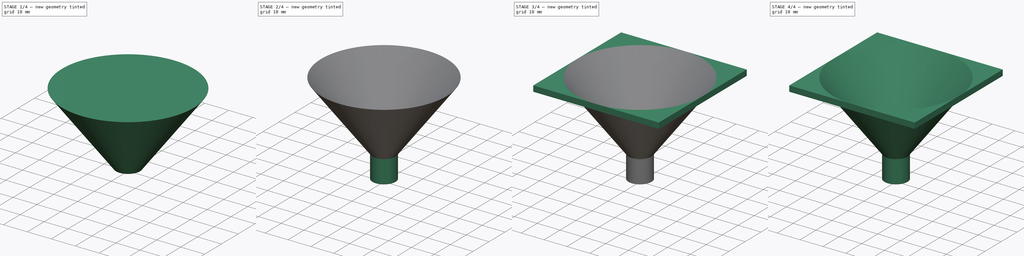
[diagram: build sequence overview — one tinted view per stage of 4, left to right]
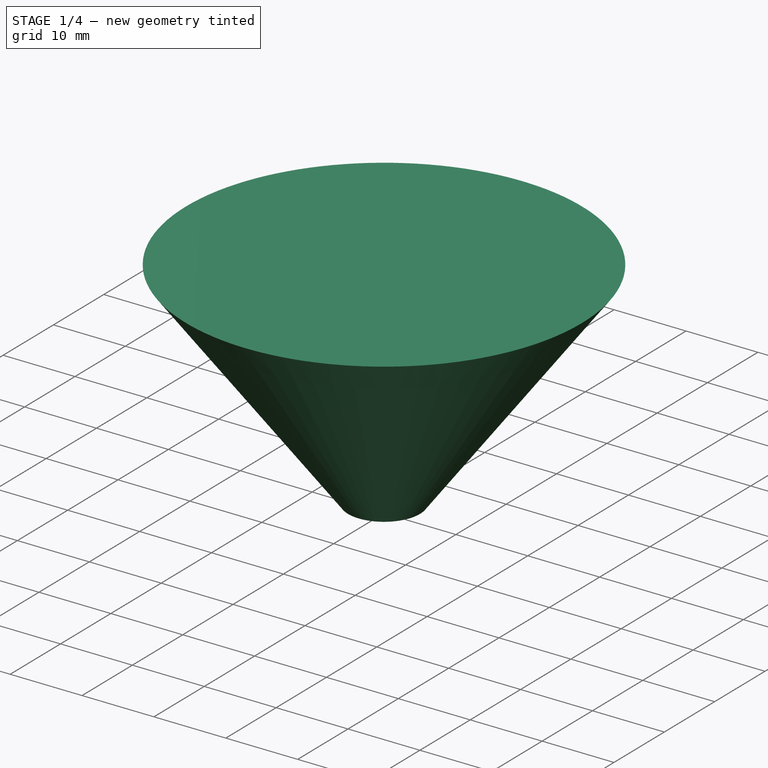
[diagram: stage 1 of 4 — iso view after this stage's code; geometry added in this stage tinted green]
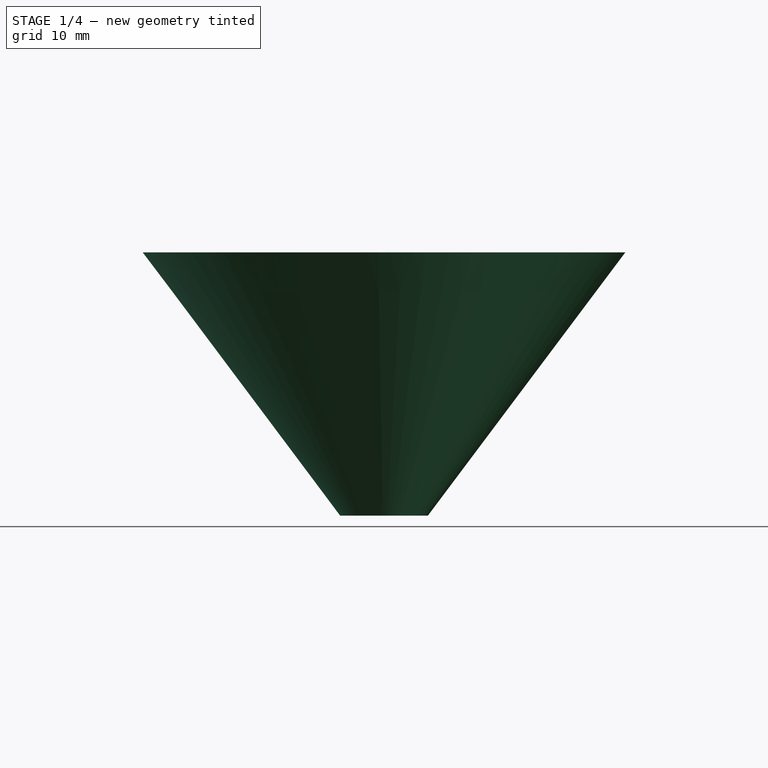
[diagram: stage 1 of 4 — front view after this stage's code; geometry added in this stage tinted green]
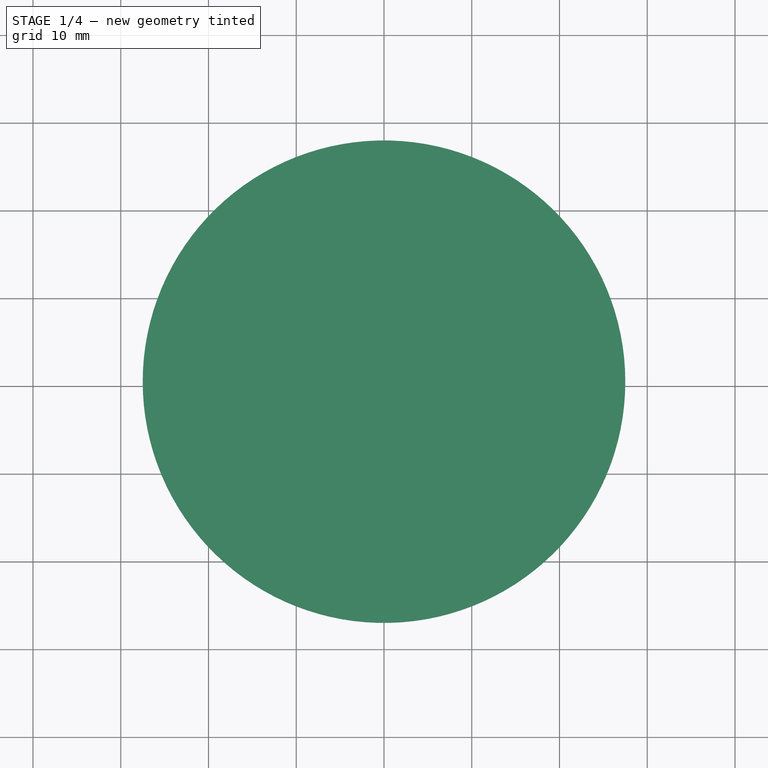
[diagram: stage 1 of 4 — top view after this stage's code; geometry added in this stage tinted green]
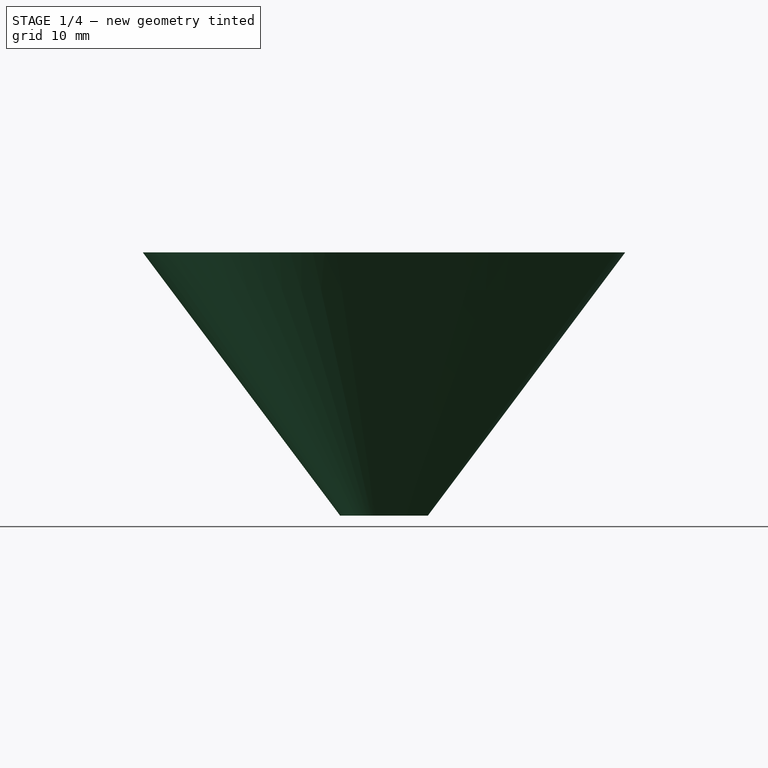
[diagram: stage 1 of 4 — right view after this stage's code; geometry added in this stage tinted green]
FCSTD DOCUMENT  (FreeCAD 0.16R6712 (Git))
Label: cono
License: All rights reserved
LicenseURL: http://en.wikipedia.org/wiki/All_rights_reserved
objects: Part::Cone×3, Part::MultiFuse×2, Part::Feature×2, Part::Box×1, Part::FeaturePython×1, Part::Cut×1, Sketcher::SketchObject×1, PartDesign::Pad×1
note: 13 computed .brp shape members not serialized (recipe doc carries the construction recipe); baked Part::Feature solids carry a one-line shape summary decoded from their .brp

FEATURE [Part::Cone] Cone001  label="cono_interior"
  Angle = 360
  Height = 30
  Radius1 = 4
  Radius2 = 27.5
FEATURE [Part::Cone] Cone002  label="cono_exteriror"
  Angle = 360
  Height = 30
  Radius1 = 5
  Radius2 = 27.5
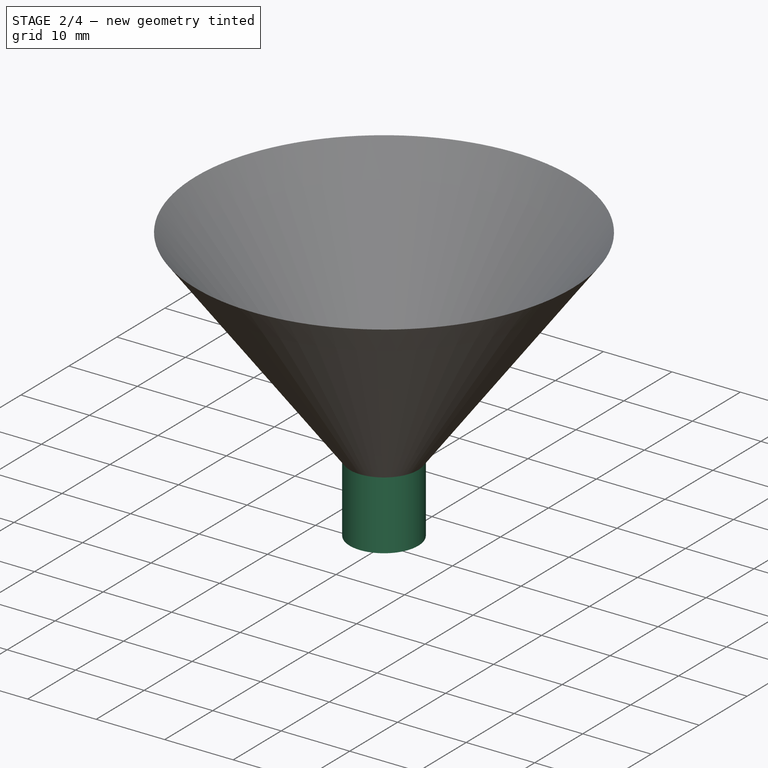
[diagram: stage 2 of 4 — iso view after this stage's code; geometry added in this stage tinted green]
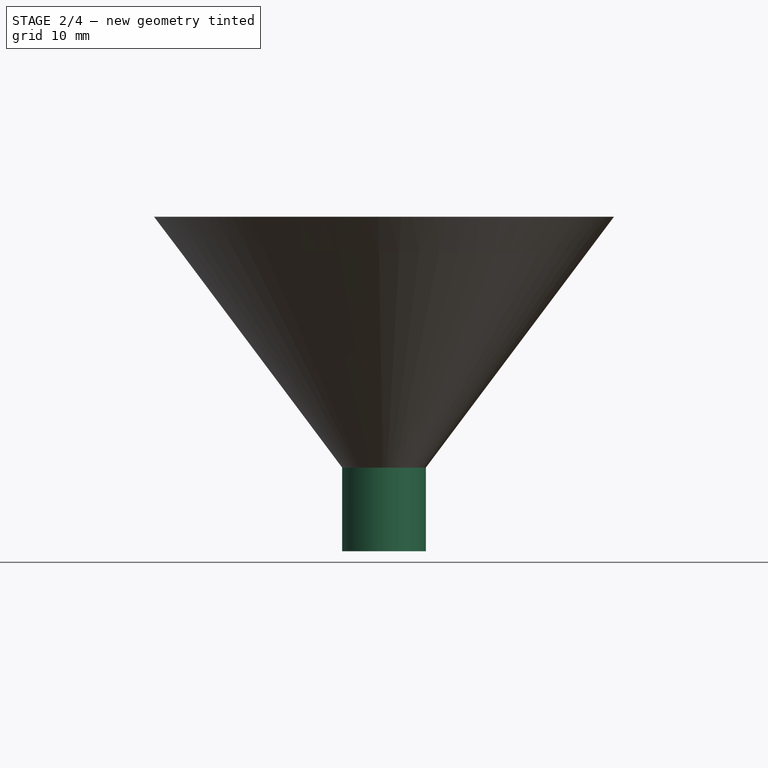
[diagram: stage 2 of 4 — front view after this stage's code; geometry added in this stage tinted green]
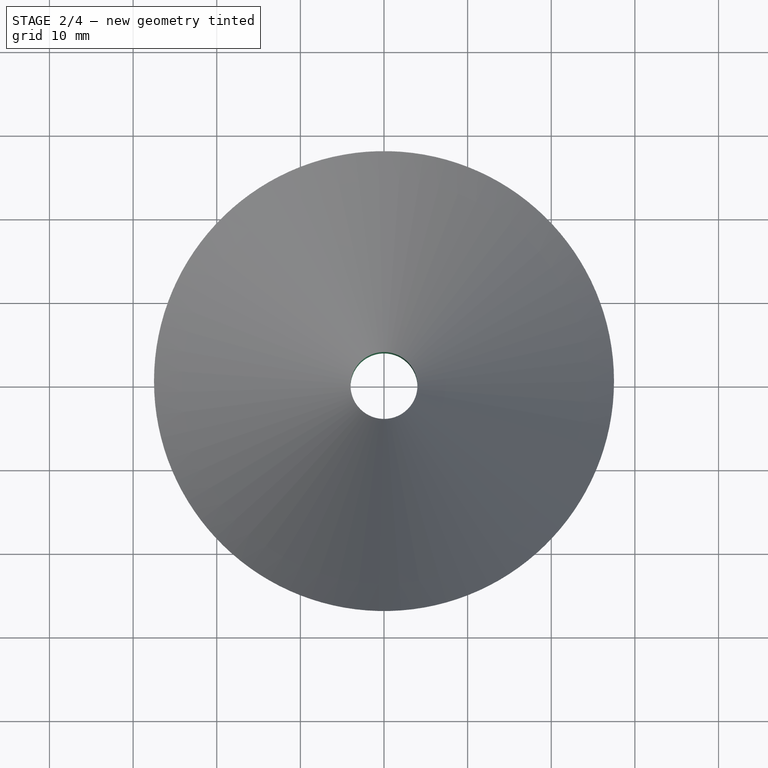
[diagram: stage 2 of 4 — top view after this stage's code; geometry added in this stage tinted green]
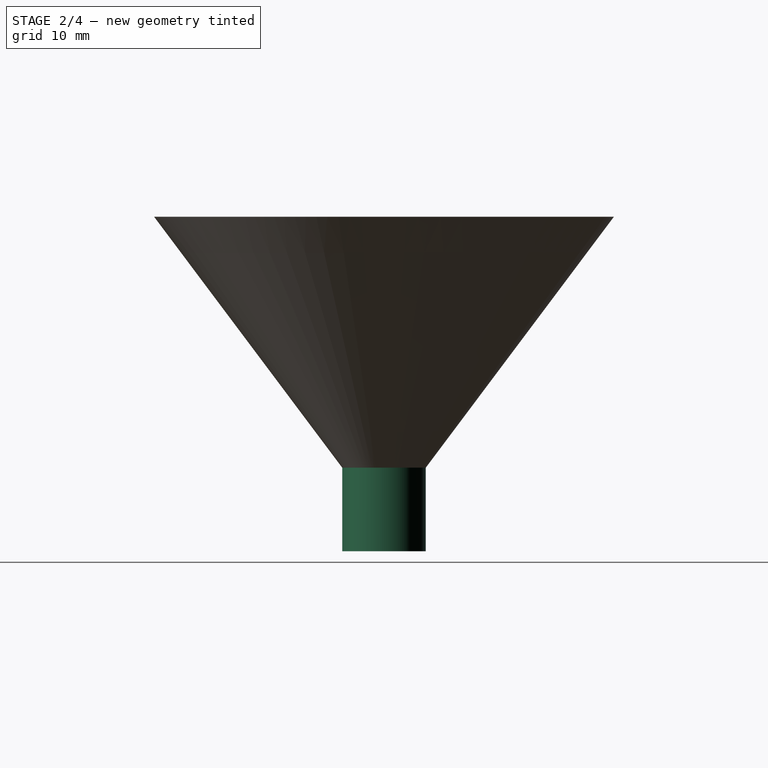
[diagram: stage 2 of 4 — right view after this stage's code; geometry added in this stage tinted green]
FEATURE [Part::Cut] Cut
  Base = -> Cone002
  Tool = -> Cone001
FEATURE [Sketcher::SketchObject] Sketch
  Placement = pos=(0,0,0) rot=(1,0,0;3.14159rad)
  Support = -> Cut [Face3]
  sketch-geometry (2):
    g0: Circle CenterX=0 CenterY=0 CenterZ=0 NormalX=0 NormalY=0 NormalZ=1 Radius=4
    g1: Circle CenterX=0 CenterY=0 CenterZ=0 NormalX=0 NormalY=0 NormalZ=1 Radius=5
  constraints (4):
    c: Coincident(g0,g-1)
    c: Coincident(g1,g-1)
    c: Radius(g0) = 4
    c: Radius(g1) = 5
FEATURE [PartDesign::Pad] Pad
  Length = 10
  Length2 = 100
  Sketch = -> Sketch
  Type = 0
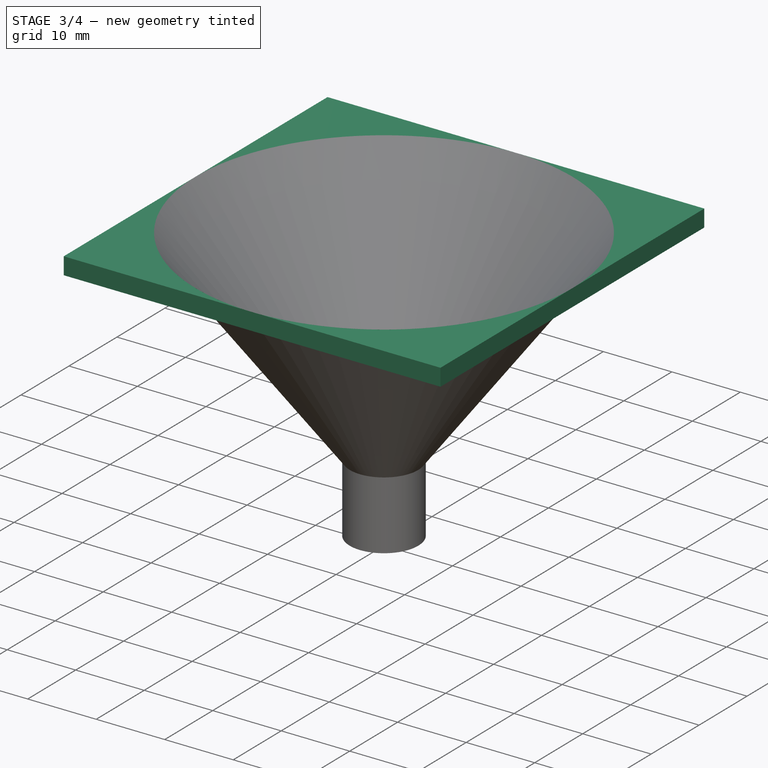
[diagram: stage 3 of 4 — iso view after this stage's code; geometry added in this stage tinted green]
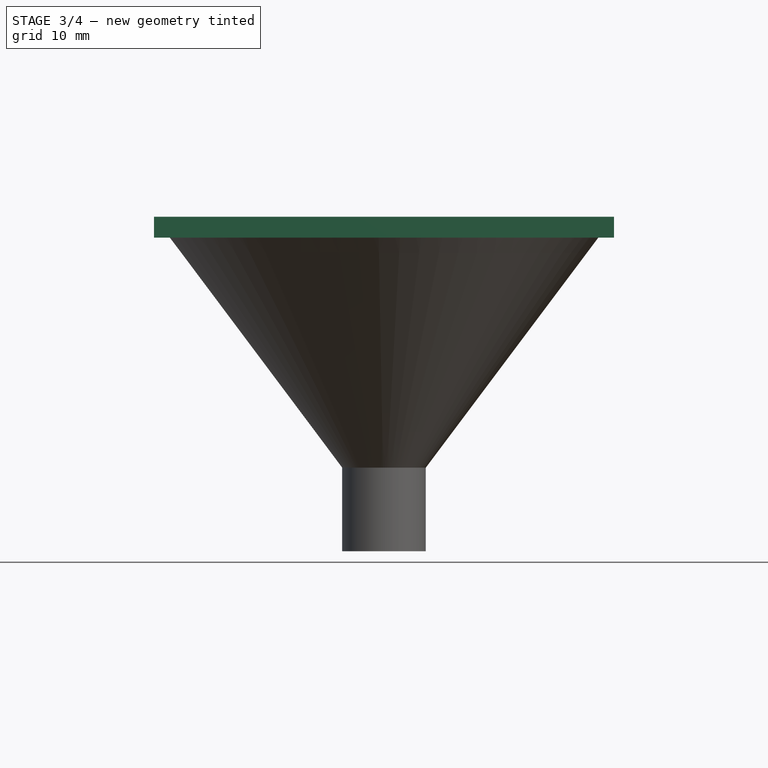
[diagram: stage 3 of 4 — front view after this stage's code; geometry added in this stage tinted green]
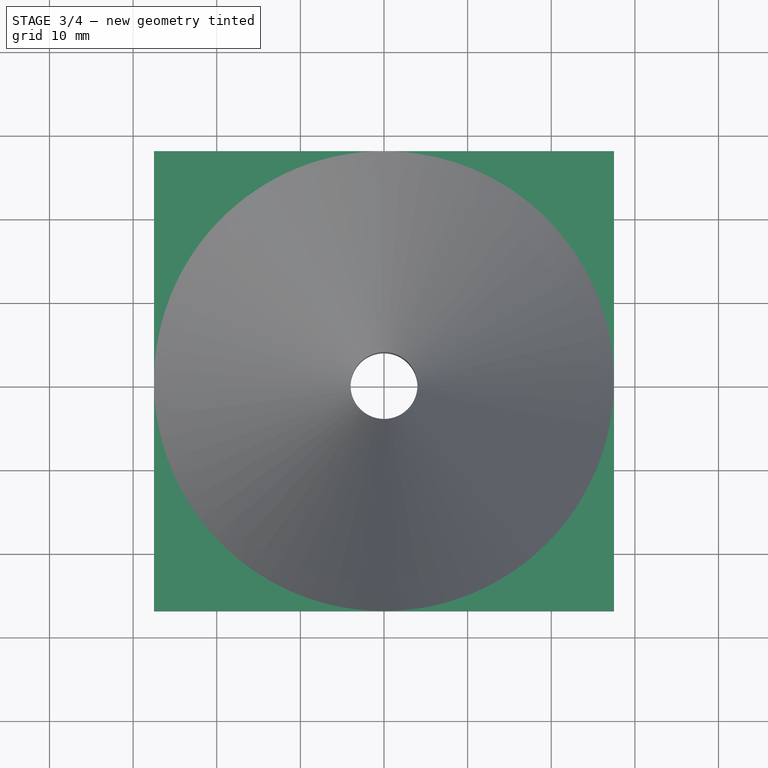
[diagram: stage 3 of 4 — top view after this stage's code; geometry added in this stage tinted green]
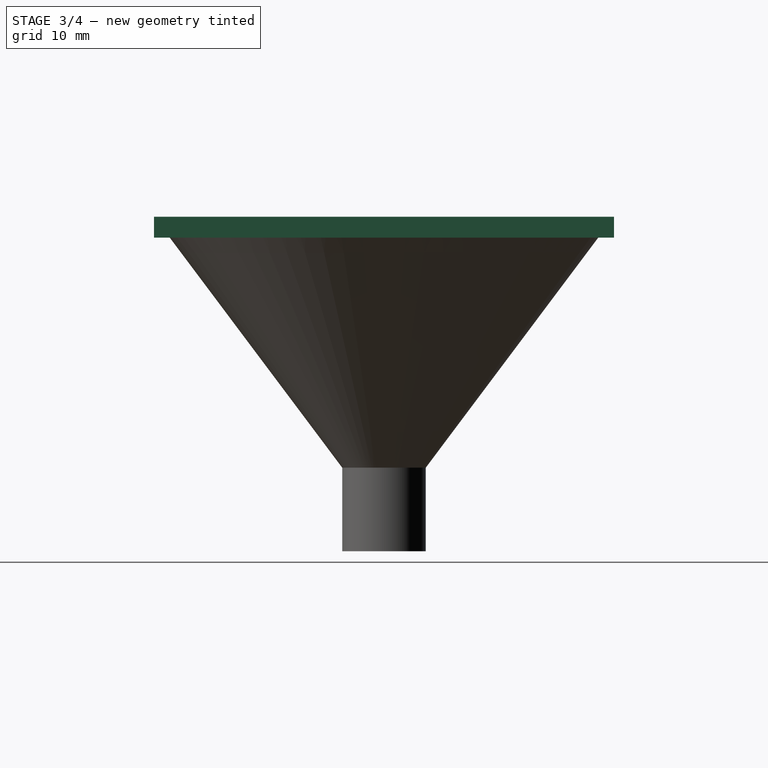
[diagram: stage 3 of 4 — right view after this stage's code; geometry added in this stage tinted green]
FEATURE [Part::Cone] Cone  label="cono_exterior"
  Angle = 360
  Height = 30
  Radius1 = 5
  Radius2 = 27.5
FEATURE [Part::Box] Box  label="Cubo"
  Height = 2.5
  Length = 55
  Placement = pos=(-27.5,-27.5,27.5) rot=(0,0,1;0rad)
  Width = 55
FEATURE [Part::FeaturePython] Cutout  # WARN: FeaturePython — macro-defined, semantics opaque (R4)
  Base = -> Box
  Mode = 3
  Tool = -> Cone
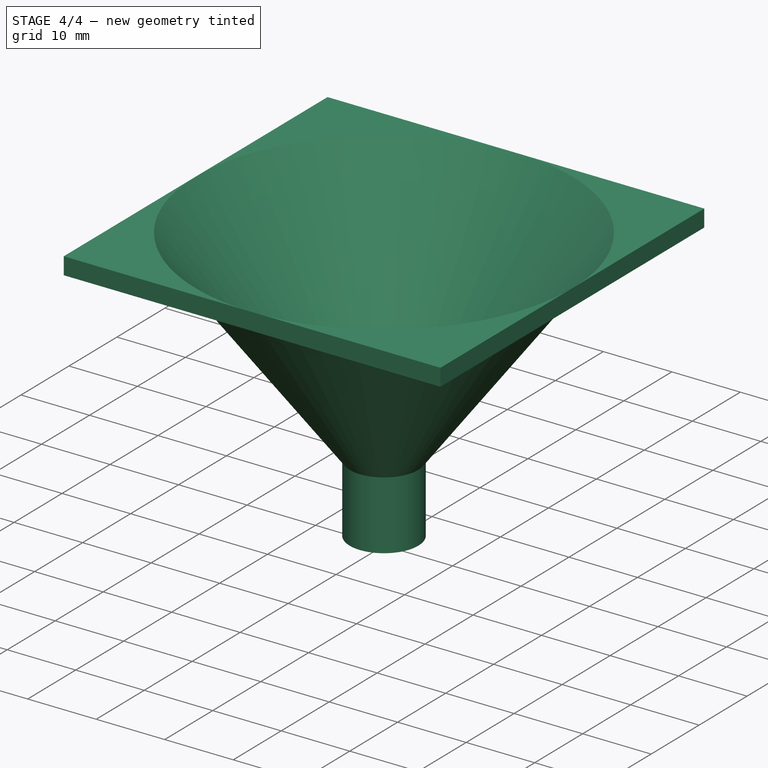
[diagram: stage 4 of 4 — iso view after this stage's code; geometry added in this stage tinted green]
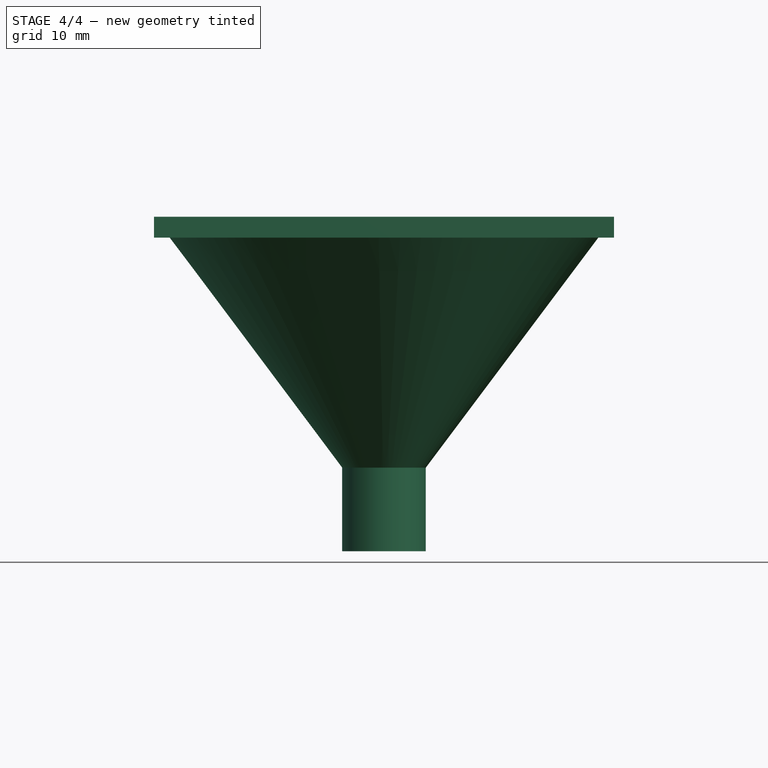
[diagram: stage 4 of 4 — front view after this stage's code; geometry added in this stage tinted green]
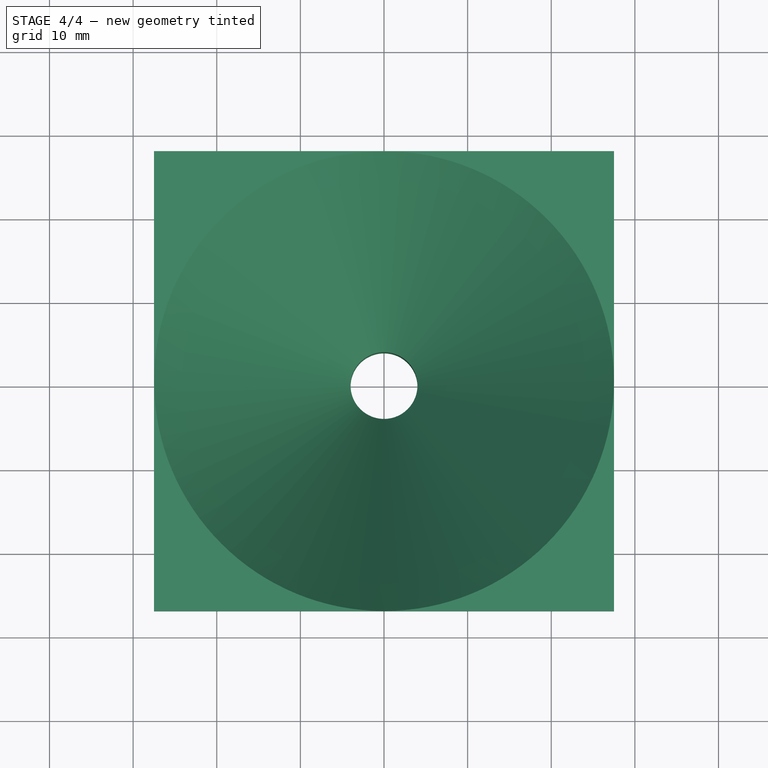
[diagram: stage 4 of 4 — top view after this stage's code; geometry added in this stage tinted green]
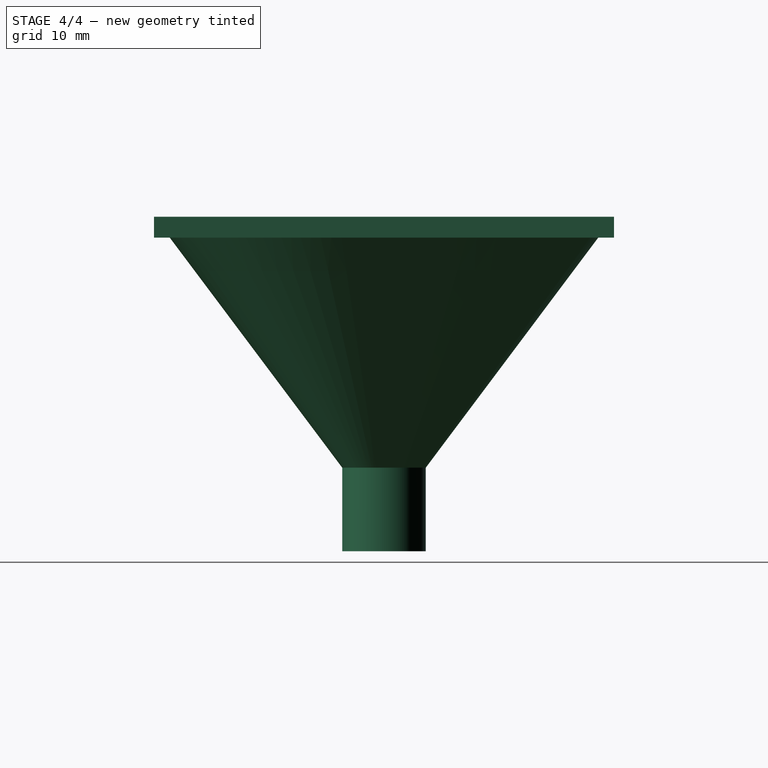
[diagram: stage 4 of 4 — right view after this stage's code; geometry added in this stage tinted green]
FEATURE [Part::MultiFuse] Fusion
  Shapes = -> [Pad,Cutout]
FEATURE [Part::Feature] Cutout001
  shape: bbox 55 x 55 x 2.5 mm, 10 faces (baked)
FEATURE [Part::MultiFuse] Fusion001
  Shapes = -> [Fusion,Cutout001]
FEATURE [Part::Feature] Fusion001001  label="Fusion002"
  shape: bbox 55 x 55 x 40 mm, 14 faces (baked)
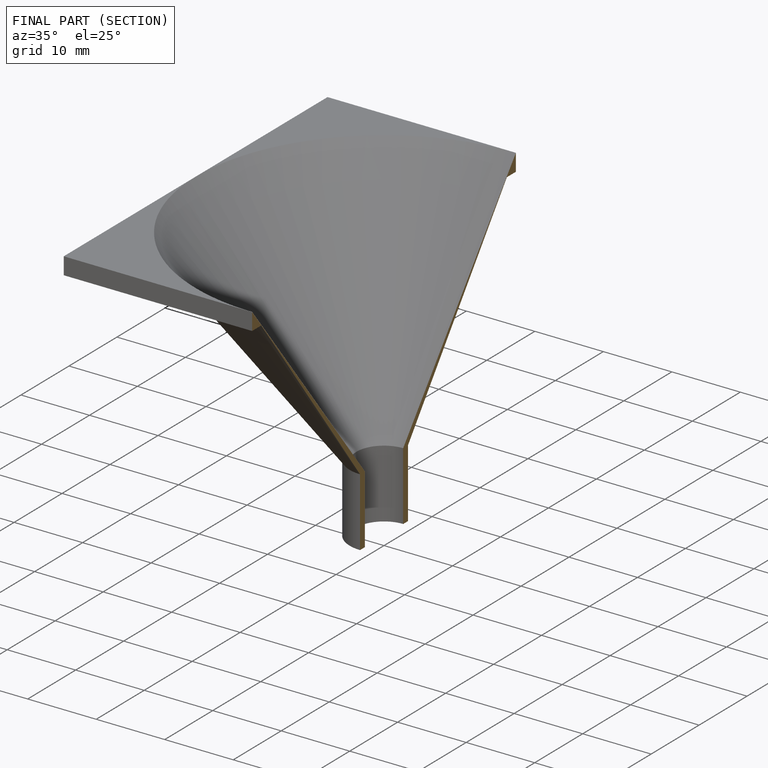
[diagram: finished part — half-section view (interior)]
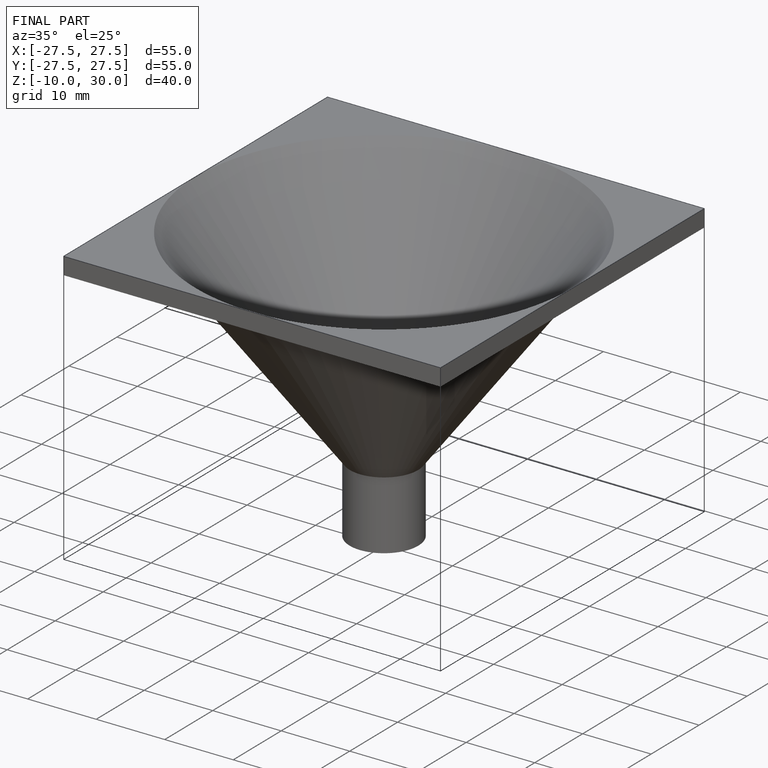
[diagram: finished part — iso view with bounding-box wireframe]
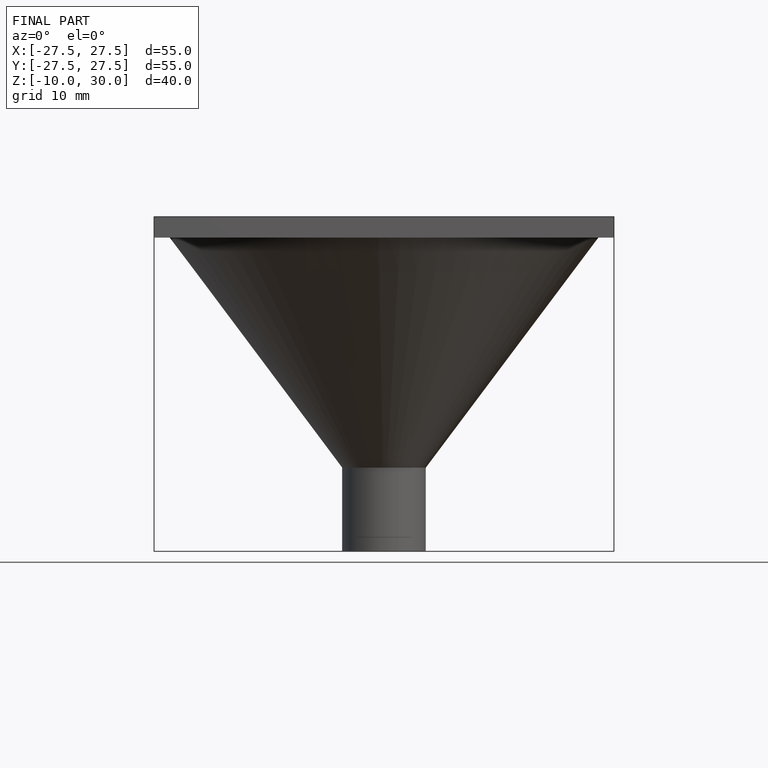
[diagram: finished part — front view with bounding-box wireframe]
